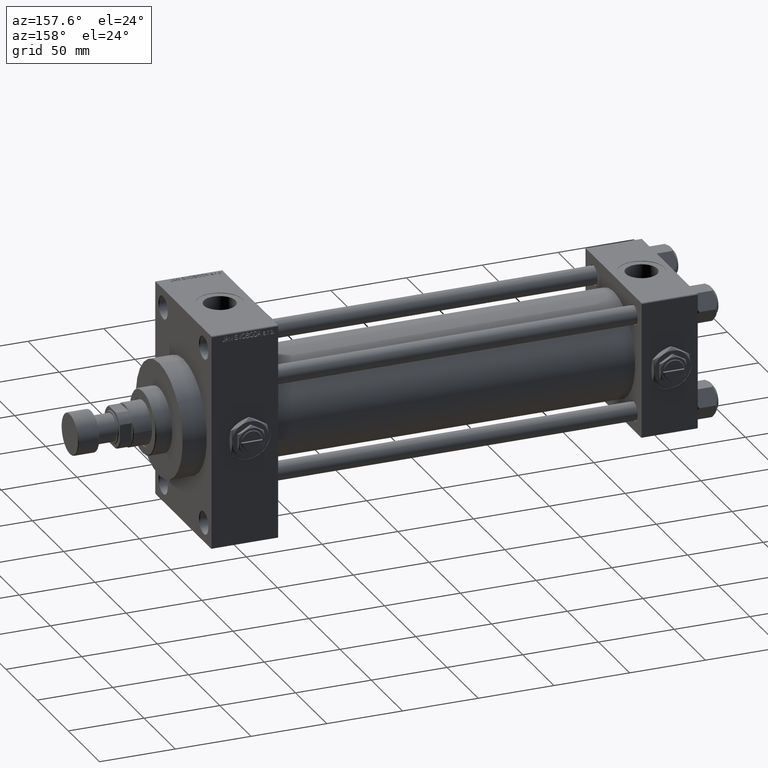
[diagram: clean part render]
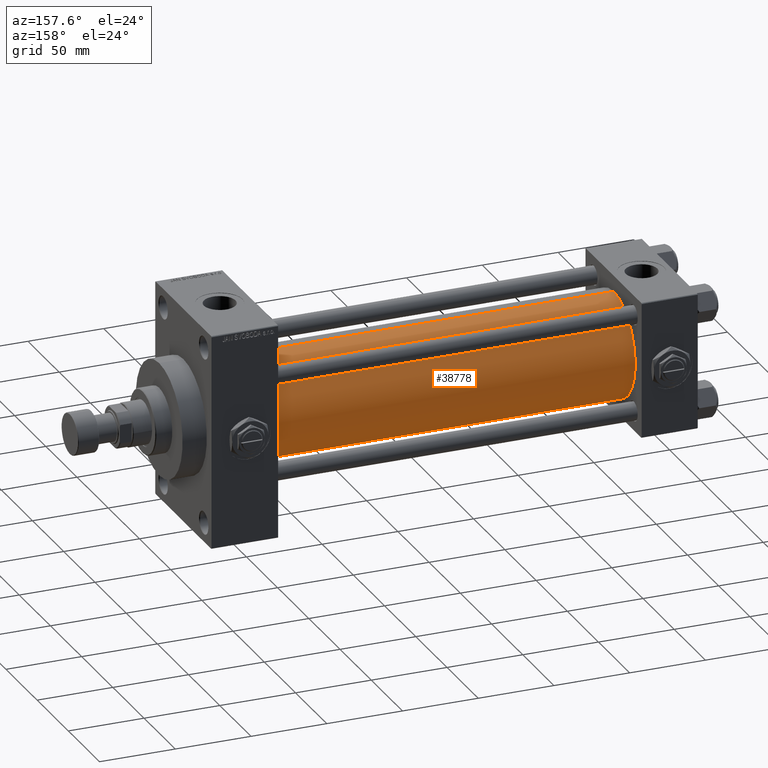
[diagram: same view with one face highlighted and labeled with its STEP entity id]
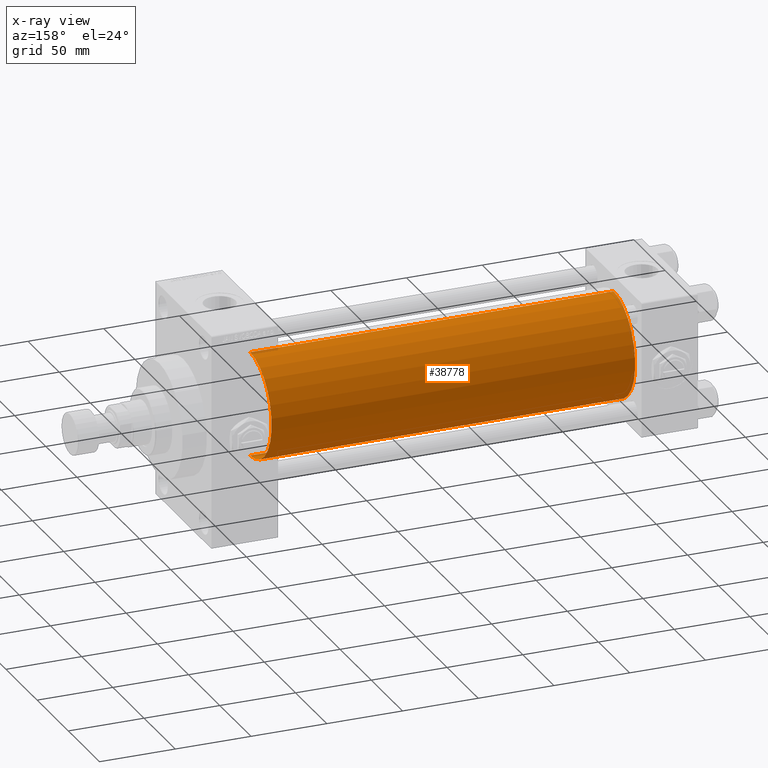
[diagram: x-ray of the same camera — body ghosted, the highlighted face saturated]
A machine part, auxiliary view. The second image highlights one B-rep face of the part: STEP entity #38778.
The next image is the same camera in x-ray: the body ghosted, the highlighted face saturated — about 0% of this face is hidden behind the body in this view.
In plain terms, the highlighted cylindrical surface (partial cylindrical patch) has radius 34.5 mm, axis along (-1, -0, -0).
Its self-contained STEP definition (entity closure, byte-faithful):
#3 = CARTESIAN_POINT ( 'NONE',  ( 37.00000000000000711, -2.602085213965210642E-15, 34.50000000000000000 ) ) ;
#339 = LINE ( 'NONE', #41848, #35313 ) ;
#3897 = EDGE_CURVE ( 'NONE', #12090, #4963, #339, .T. ) ;
#4963 = VERTEX_POINT ( 'NONE', #15817 ) ;
#7405 = ORIENTED_EDGE ( 'NONE', *, *, #38358, .F. ) ;
#8500 = CARTESIAN_POINT ( 'NONE',  ( 276.9999999999999432, 1.622946243093158675E-15, -34.50000000000000000 ) ) ;
#9642 = DIRECTION ( 'NONE',  ( 0.000000000000000000, 0.000000000000000000, -1.000000000000000000 ) ) ;
#11727 = EDGE_LOOP ( 'NONE', ( #7405, #36056, #17607, #21881 ) ) ;
#12090 = VERTEX_POINT ( 'NONE', #8500 ) ;
#13822 = VERTEX_POINT ( 'NONE', #15000 ) ;
#15000 = CARTESIAN_POINT ( 'NONE',  ( 276.9999999999999432, -2.602085213965210642E-15, 34.50000000000000000 ) ) ;
#15817 = CARTESIAN_POINT ( 'NONE',  ( 37.00000000000000711, 1.622946243093158675E-15, -34.50000000000000000 ) ) ;
#16802 = EDGE_CURVE ( 'NONE', #13822, #34611, #36597, .T. ) ;
#17607 = ORIENTED_EDGE ( 'NONE', *, *, #30508, .T. ) ;
#18346 = DIRECTION ( 'NONE',  ( 1.000000000000000000, -0.000000000000000000, 0.000000000000000000 ) ) ;
#20362 = AXIS2_PLACEMENT_3D ( 'NONE', #44104, #36775, #9642 ) ;
#20524 = DIRECTION ( 'NONE',  ( -1.000000000000000000, -0.000000000000000000, -0.000000000000000000 ) ) ;
#20878 = AXIS2_PLACEMENT_3D ( 'NONE', #41254, #18346, #21390 ) ;
#21390 = DIRECTION ( 'NONE',  ( 0.000000000000000000, 0.000000000000000000, 1.000000000000000000 ) ) ;
#21881 = ORIENTED_EDGE ( 'NONE', *, *, #16802, .F. ) ;
#22124 = VECTOR ( 'NONE', #20524, 1000.000000000000000 ) ;
#22860 = FACE_OUTER_BOUND ( 'NONE', #11727, .T. ) ;
#25167 = CIRCLE ( 'NONE', #20362, 34.50000000000000000 ) ;
#28319 = CARTESIAN_POINT ( 'NONE',  ( 276.9999999999999432, -2.602085213965210642E-15, 34.50000000000000000 ) ) ;
#30508 = EDGE_CURVE ( 'NONE', #4963, #34611, #42563, .T. ) ;
#30897 = CARTESIAN_POINT ( 'NONE',  ( 276.9999999999999432, -2.602085213965210642E-15, 0.000000000000000000 ) ) ;
#34611 = VERTEX_POINT ( 'NONE', #3 ) ;
#35313 = VECTOR ( 'NONE', #46379, 1000.000000000000000 ) ;
#36056 = ORIENTED_EDGE ( 'NONE', *, *, #3897, .T. ) ;
#36597 = LINE ( 'NONE', #28319, #22124 ) ;
#36775 = DIRECTION ( 'NONE',  ( 1.000000000000000000, 0.000000000000000000, 0.000000000000000000 ) ) ;
#38358 = EDGE_CURVE ( 'NONE', #12090, #13822, #25167, .T. ) ;
#38451 = DIRECTION ( 'NONE',  ( 0.000000000000000000, 0.000000000000000000, 1.000000000000000000 ) ) ;
#38778 = ADVANCED_FACE ( 'NONE', ( #22860 ), #49795, .T. ) ;
#41254 = CARTESIAN_POINT ( 'NONE',  ( 37.00000000000000711, -2.602085213965210642E-15, 0.000000000000000000 ) ) ;
#41848 = CARTESIAN_POINT ( 'NONE',  ( 276.9999999999999432, 1.622946243093158675E-15, -34.50000000000000000 ) ) ;
#42563 = CIRCLE ( 'NONE', #20878, 34.50000000000000000 ) ;
#44104 = CARTESIAN_POINT ( 'NONE',  ( 276.9999999999999432, -2.602085213965210642E-15, 0.000000000000000000 ) ) ;
#46379 = DIRECTION ( 'NONE',  ( -1.000000000000000000, -0.000000000000000000, -0.000000000000000000 ) ) ;
#47701 = AXIS2_PLACEMENT_3D ( 'NONE', #30897, #49052, #38451 ) ;
#49052 = DIRECTION ( 'NONE',  ( -1.000000000000000000, -0.000000000000000000, -0.000000000000000000 ) ) ;
#49795 = CYLINDRICAL_SURFACE ( 'NONE', #47701, 34.50000000000000000 ) ;